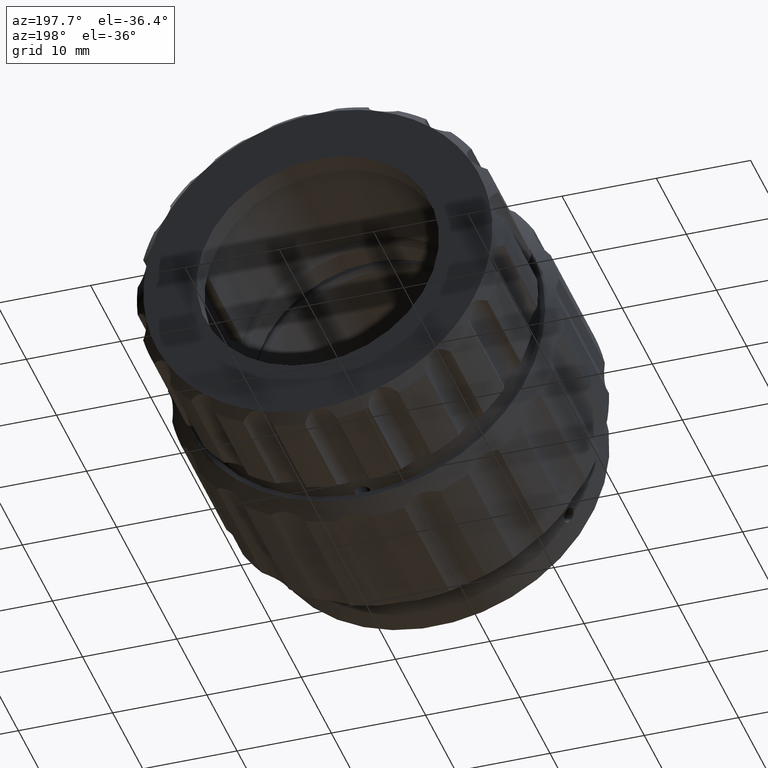
[diagram: clean part render]
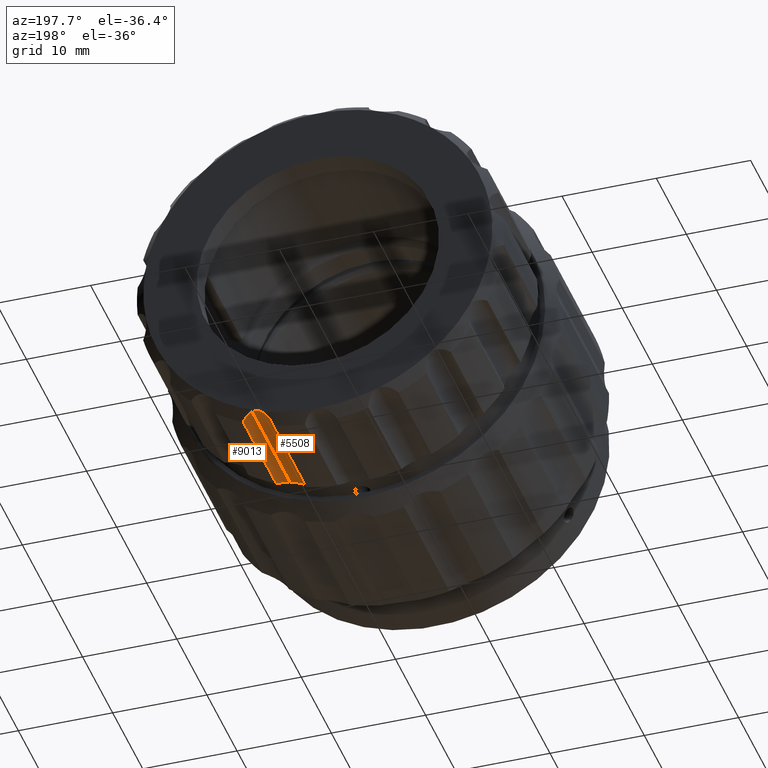
[diagram: same view with one multi-face feature highlighted, each face labeled with its STEP entity id]
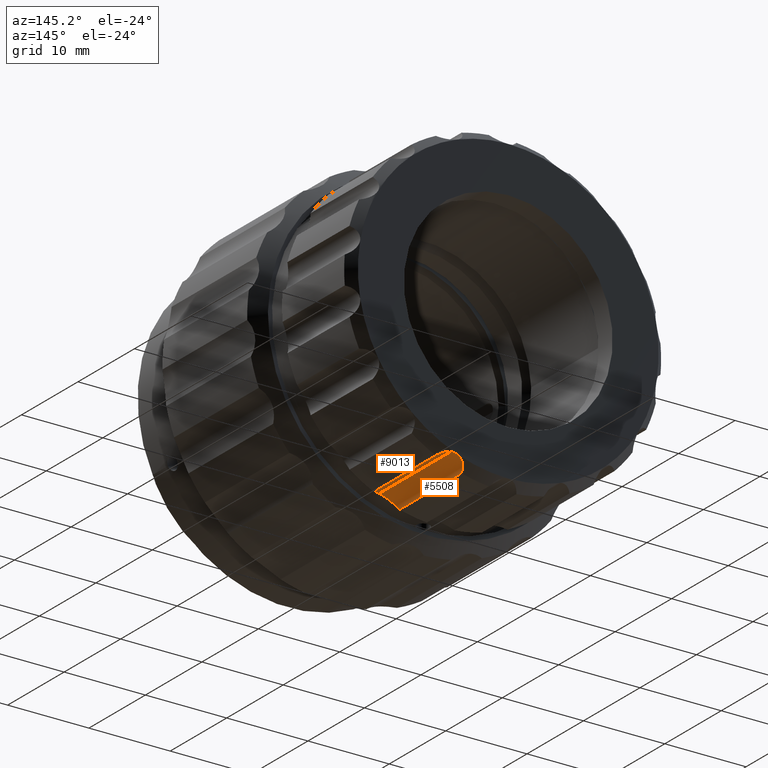
[diagram: same view with one multi-face feature highlighted, each face labeled with its STEP entity id]
A machine part, auxiliary view. The highlighted faces form ONE feature: a constant-radius fillet chain: 2 tangent blend faces with common blend radius 2 mm. The faces share edges in the B-rep.
A second angle (auxiliary view) of the same feature is appended — it is thin or edge-on in the first view.
Their STEP definitions:
[1] entity #9013 (Cylinder):
#55 = VERTEX_POINT ( 'NONE', #1149 ) ;
#70 = DIRECTION ( 'NONE',  ( -0.000000000000000000, 1.000000000000000000, -0.000000000000000000 ) ) ;
#527 = EDGE_CURVE ( 'NONE', #8628, #8778, #8072, .T. ) ;
#788 = CARTESIAN_POINT ( 'NONE',  ( 12.98311395248879307, -6.548755687005441750, 25.63960771921985682 ) ) ;
#836 = FACE_OUTER_BOUND ( 'NONE', #8691, .T. ) ;
#1066 = CARTESIAN_POINT ( 'NONE',  ( 14.20197974535352081, 7.451244312994560026, 27.22528302614250606 ) ) ;
#1149 = CARTESIAN_POINT ( 'NONE',  ( 12.98311395248885880, -4.302516684558157500, 27.63960771921991366 ) ) ;
#1301 = ORIENTED_EDGE ( 'NONE', *, *, #2106, .T. ) ;
#1375 = VECTOR ( 'NONE', #70, 1000.000000000000000 ) ;
#1399 = CARTESIAN_POINT ( 'NONE',  ( 14.20197974535352081, 7.451244312994560026, 27.22528302614250606 ) ) ;
#1407 = CARTESIAN_POINT ( 'NONE',  ( 13.22646887456539488, 8.214797936063586548, 27.62811870873805020 ) ) ;
#2106 = EDGE_CURVE ( 'NONE', #55, #8778, #5415, .T. ) ;
#2134 = EDGE_CURVE ( 'NONE', #55, #3420, #9218, .T. ) ;
#2647 = CARTESIAN_POINT ( 'NONE',  ( 13.10396432337362960, -4.262973755687936794, 27.63960771921986037 ) ) ;
#2885 = EDGE_CURVE ( 'NONE', #3420, #8628, #6687, .T. ) ;
#3106 = CYLINDRICAL_SURFACE ( 'NONE', #6450, 2.000000000000001776 ) ;
#3361 = CARTESIAN_POINT ( 'NONE',  ( 13.86234683605043116, -3.849485032689876185, 27.44923174645667530 ) ) ;
#3390 = CARTESIAN_POINT ( 'NONE',  ( 13.56358379582345641, 8.016083941377402766, 27.55655809339551610 ) ) ;
#3420 = VERTEX_POINT ( 'NONE', #4856 ) ;
#4145 = CARTESIAN_POINT ( 'NONE',  ( 14.04474959141558799, 7.627171938195074219, 27.34614160002906402 ) ) ;
#4216 = CARTESIAN_POINT ( 'NONE',  ( 13.44601716800936408, -4.106317091073965031, 27.58862551878364044 ) ) ;
#4264 = CARTESIAN_POINT ( 'NONE',  ( 13.55357987458721603, -4.045865376989598694, 27.55963793450206722 ) ) ;
#4270 = CARTESIAN_POINT ( 'NONE',  ( 12.98311395248879307, 8.318069460180153030, 27.63960771921985682 ) ) ;
#4586 = ORIENTED_EDGE ( 'NONE', *, *, #2885, .F. ) ;
#4667 = CARTESIAN_POINT ( 'NONE',  ( 12.98311395248879307, -6.548755687005441750, 27.63960771921985682 ) ) ;
#4764 = ORIENTED_EDGE ( 'NONE', *, *, #527, .F. ) ;
#4856 = CARTESIAN_POINT ( 'NONE',  ( 14.20197974535352259, -3.548755687005437753, 27.22528302614250606 ) ) ;
#5404 = VECTOR ( 'NONE', #9877, 1000.000000000000000 ) ;
#5415 = LINE ( 'NONE', #4667, #1375 ) ;
#6450 = AXIS2_PLACEMENT_3D ( 'NONE', #788, #9316, #7821 ) ;
#6482 = CARTESIAN_POINT ( 'NONE',  ( 14.20197974535352259, -3.548755687005437753, 27.22528302614250606 ) ) ;
#6687 = LINE ( 'NONE', #9824, #5404 ) ;
#6774 = CARTESIAN_POINT ( 'NONE',  ( 12.98311395248879307, 8.318069460180153030, 27.63960771921985682 ) ) ;
#7234 = CARTESIAN_POINT ( 'NONE',  ( 13.86790796176060780, 7.791991343959531413, 27.44618333774493379 ) ) ;
#7359 = CARTESIAN_POINT ( 'NONE',  ( 14.04212279397295404, -3.704292031124917006, 27.34816074829582533 ) ) ;
#7821 = DIRECTION ( 'NONE',  ( 0.000000000000000000, 0.000000000000000000, 1.000000000000000000 ) ) ;
#7930 = CARTESIAN_POINT ( 'NONE',  ( 12.98311395248885880, -4.302516684558157500, 27.63960771921991366 ) ) ;
#8072 = B_SPLINE_CURVE_WITH_KNOTS ( 'NONE', 3,
 ( #1066, #4145, #7234, #3390, #8831, #1407, #8212, #6774 ),
 .UNSPECIFIED., .F., .F.,
 ( 4, 2, 2, 4 ),
 ( 2.969550403672835319E-07, 0.0007839554264299858572, 0.001175784662124799247, 0.001567613897819612745 ),
 .UNSPECIFIED. ) ;
#8080 = CARTESIAN_POINT ( 'NONE',  ( 13.22195283064430349, -4.214577928670279583, 27.62855361095175510 ) ) ;
#8212 = CARTESIAN_POINT ( 'NONE',  ( 13.10782951623123260, 8.271140671923584264, 27.63960771921986748 ) ) ;
#8420 = ORIENTED_EDGE ( 'NONE', *, *, #2134, .F. ) ;
#8628 = VERTEX_POINT ( 'NONE', #1399 ) ;
#8691 = EDGE_LOOP ( 'NONE', ( #8420, #1301, #4764, #4586 ) ) ;
#8778 = VERTEX_POINT ( 'NONE', #4270 ) ;
#8831 = CARTESIAN_POINT ( 'NONE',  ( 13.45424173784532762, 8.087481504195212167, 27.58676877660534998 ) ) ;
#9013 = ADVANCED_FACE ( 'NONE', ( #836 ), #3106, .F. ) ;
#9218 = B_SPLINE_CURVE_WITH_KNOTS ( 'NONE', 3,
 ( #7930, #2647, #8080, #4216, #4264, #3361, #7359, #6482 ),
 .UNSPECIFIED., .F., .F.,
 ( 4, 2, 2, 4 ),
 ( 0.002920460057102231954, 0.003297645085213982228, 0.003674830113325732069, 0.004429200169549230015 ),
 .UNSPECIFIED. ) ;
#9316 = DIRECTION ( 'NONE',  ( -0.000000000000000000, 1.000000000000000000, -0.000000000000000000 ) ) ;
#9824 = CARTESIAN_POINT ( 'NONE',  ( 14.20197974535352259, 0.9512443129945594711, 27.22528302614250606 ) ) ;
#9877 = DIRECTION ( 'NONE',  ( -0.000000000000000000, 1.000000000000000000, -0.000000000000000000 ) ) ;
[2] entity #5508 (Cylinder):
#55 = VERTEX_POINT ( 'NONE', #1149 ) ;
#70 = DIRECTION ( 'NONE',  ( -0.000000000000000000, 1.000000000000000000, -0.000000000000000000 ) ) ;
#145 = CARTESIAN_POINT ( 'NONE',  ( 11.14166534276341558, -3.839614523176190897, 26.44766062202117496 ) ) ;
#350 = CARTESIAN_POINT ( 'NONE',  ( 12.98311395248879307, 8.318069460180153030, 27.63960771921985682 ) ) ;
#490 = CARTESIAN_POINT ( 'NONE',  ( 12.12006612059902189, 8.451244312994559138, 27.45383954261582460 ) ) ;
#567 = CARTESIAN_POINT ( 'NONE',  ( 11.03015614468119310, 0.9512443129945594711, 26.07083364715477458 ) ) ;
#958 = B_SPLINE_CURVE_WITH_KNOTS ( 'NONE', 3,
 ( #7082, #8625, #145, #9445, #2472, #8678, #5027, #1955, #6608, #2572, #6555, #7434, #5740, #8154, #8103, #4876 ),
 .UNSPECIFIED., .F., .F.,
 ( 4, 2, 2, 2, 2, 2, 2, 4 ),
 ( 3.235133249079060327E-07, 0.0007303576492692355438, 0.001095374717241401558, 0.001460391785213567897, 0.001825408853185734020, 0.002190425921157899709, 0.002555442989130065831, 0.002920460057102231954 ),
 .UNSPECIFIED. ) ;
#1110 = CARTESIAN_POINT ( 'NONE',  ( 12.29907366583747930, 8.451244312994560914, 27.51899296079168167 ) ) ;
#1149 = CARTESIAN_POINT ( 'NONE',  ( 12.98311395248885880, -4.302516684558157500, 27.63960771921991366 ) ) ;
#1241 = ORIENTED_EDGE ( 'NONE', *, *, #2106, .F. ) ;
#1254 = CARTESIAN_POINT ( 'NONE',  ( 12.75686823722165997, 8.393599258931216056, 27.63018403390904254 ) ) ;
#1375 = VECTOR ( 'NONE', #70, 1000.000000000000000 ) ;
#1442 = EDGE_CURVE ( 'NONE', #9533, #55, #958, .T. ) ;
#1734 = ORIENTED_EDGE ( 'NONE', *, *, #7136, .F. ) ;
#1761 = AXIS2_PLACEMENT_3D ( 'NONE', #7492, #6466, #5851 ) ;
#1854 = CARTESIAN_POINT ( 'NONE',  ( 12.52720586203615127, 8.439164951002007697, 27.59043549258635863 ) ) ;
#1955 = CARTESIAN_POINT ( 'NONE',  ( 11.74835598231073064, -4.326817530003400414, 27.21726033824833024 ) ) ;
#2065 = CYLINDRICAL_SURFACE ( 'NONE', #1761, 2.000000000000001776 ) ;
#2106 = EDGE_CURVE ( 'NONE', #55, #8778, #5415, .T. ) ;
#2472 = CARTESIAN_POINT ( 'NONE',  ( 11.35807798188705320, -4.090296821096658597, 26.81063119585913768 ) ) ;
#2572 = CARTESIAN_POINT ( 'NONE',  ( 12.04932306549631704, -4.404027974854527017, 27.41231629321998042 ) ) ;
#2648 = B_SPLINE_CURVE_WITH_KNOTS ( 'NONE', 3,
 ( #6602, #490, #3580, #6661, #5891, #8304, #10001, #7586, #8354, #6917, #8456, #10050 ),
 .UNSPECIFIED., .F., .F.,
 ( 4, 2, 2, 2, 2, 4 ),
 ( 0.002272448979374291130, 0.002839709063133294756, 0.003123339105012792449, 0.003406969146892290575, 0.003974229230651282058, 0.004541489314410273974 ),
 .UNSPECIFIED. ) ;
#3253 = VERTEX_POINT ( 'NONE', #7267 ) ;
#3580 = CARTESIAN_POINT ( 'NONE',  ( 11.94925942418700693, 8.419677107883400069, 27.36141170200773942 ) ) ;
#3634 = CARTESIAN_POINT ( 'NONE',  ( 11.03015614468119310, -3.548755687005437753, 26.07083364715477458 ) ) ;
#3655 = DIRECTION ( 'NONE',  ( 0.000000000000000000, -1.000000000000000000, 0.000000000000000000 ) ) ;
#3767 = ORIENTED_EDGE ( 'NONE', *, *, #8576, .F. ) ;
#3819 = EDGE_CURVE ( 'NONE', #7281, #9533, #6580, .T. ) ;
#4270 = CARTESIAN_POINT ( 'NONE',  ( 12.98311395248879307, 8.318069460180153030, 27.63960771921985682 ) ) ;
#4667 = CARTESIAN_POINT ( 'NONE',  ( 12.98311395248879307, -6.548755687005441750, 27.63960771921985682 ) ) ;
#4825 = CARTESIAN_POINT ( 'NONE',  ( 11.03015614468119310, 7.451244312994560026, 26.07083364715477458 ) ) ;
#4876 = CARTESIAN_POINT ( 'NONE',  ( 12.98311395248885880, -4.302516684558157500, 27.63960771921991366 ) ) ;
#5027 = CARTESIAN_POINT ( 'NONE',  ( 11.57327158558088698, -4.245482584203103649, 27.06296977144590699 ) ) ;
#5415 = LINE ( 'NONE', #4667, #1375 ) ;
#5508 = ADVANCED_FACE ( 'NONE', ( #6617 ), #2065, .F. ) ;
#5740 = CARTESIAN_POINT ( 'NONE',  ( 12.50806923097353618, -4.410276219517823115, 27.58618786017384394 ) ) ;
#5763 = B_SPLINE_CURVE_WITH_KNOTS ( 'NONE', 3,
 ( #350, #8209, #1254, #1854, #8054, #1110 ),
 .UNSPECIFIED., .F., .F.,
 ( 4, 2, 4 ),
 ( 0.001567613897819612745, 0.001920031438596951938, 0.002272448979374291130 ),
 .UNSPECIFIED. ) ;
#5851 = DIRECTION ( 'NONE',  ( 0.000000000000000000, 0.000000000000000000, 1.000000000000000000 ) ) ;
#5891 = CARTESIAN_POINT ( 'NONE',  ( 11.65846890608945863, 8.300585463232257766, 27.14059600752240442 ) ) ;
#6093 = ORIENTED_EDGE ( 'NONE', *, *, #3819, .F. ) ;
#6101 = ORIENTED_EDGE ( 'NONE', *, *, #1442, .F. ) ;
#6466 = DIRECTION ( 'NONE',  ( -0.000000000000000000, 1.000000000000000000, -0.000000000000000000 ) ) ;
#6555 = CARTESIAN_POINT ( 'NONE',  ( 12.16127792303384325, -4.416684589950738093, 27.46703223538220939 ) ) ;
#6580 = LINE ( 'NONE', #567, #9949 ) ;
#6602 = CARTESIAN_POINT ( 'NONE',  ( 12.29907366583747930, 8.451244312994560914, 27.51899296079168167 ) ) ;
#6608 = CARTESIAN_POINT ( 'NONE',  ( 11.84364256412585981, -4.359040822922144010, 27.28765688840929471 ) ) ;
#6617 = FACE_OUTER_BOUND ( 'NONE', #9297, .T. ) ;
#6661 = CARTESIAN_POINT ( 'NONE',  ( 11.72785572035912161, 8.335203144660212615, 27.19931692477054952 ) ) ;
#6917 = CARTESIAN_POINT ( 'NONE',  ( 11.10739254875899640, 7.700511805140813237, 26.34999926722486308 ) ) ;
#7082 = CARTESIAN_POINT ( 'NONE',  ( 11.03015614468119310, -3.548755687005437753, 26.07083364715477458 ) ) ;
#7136 = EDGE_CURVE ( 'NONE', #8778, #3253, #5763, .T. ) ;
#7267 = CARTESIAN_POINT ( 'NONE',  ( 12.29907366583747930, 8.451244312994560914, 27.51899296079168167 ) ) ;
#7281 = VERTEX_POINT ( 'NONE', #4825 ) ;
#7434 = CARTESIAN_POINT ( 'NONE',  ( 12.38957518568116711, -4.419650705132298185, 27.55340147871380196 ) ) ;
#7492 = CARTESIAN_POINT ( 'NONE',  ( 12.98311395248879307, -6.548755687005441750, 25.63960771921985682 ) ) ;
#7586 = CARTESIAN_POINT ( 'NONE',  ( 11.31960952091343309, 8.038822680653716191, 26.76223919408759855 ) ) ;
#8054 = CARTESIAN_POINT ( 'NONE',  ( 12.41028437972287435, 8.451244312994557362, 27.55947035037746318 ) ) ;
#8103 = CARTESIAN_POINT ( 'NONE',  ( 12.86616220531971599, -4.340783961569298022, 27.63960771921986748 ) ) ;
#8154 = CARTESIAN_POINT ( 'NONE',  ( 12.74785012047176025, -4.370499671753018234, 27.62945511586630332 ) ) ;
#8209 = CARTESIAN_POINT ( 'NONE',  ( 12.87094276089093725, 8.360277970016648297, 27.63960771921986748 ) ) ;
#8304 = CARTESIAN_POINT ( 'NONE',  ( 11.53249106248515510, 8.222746696284479739, 27.01922490219822492 ) ) ;
#8354 = CARTESIAN_POINT ( 'NONE',  ( 11.23591810123066814, 7.929895698864684483, 26.62464253750469112 ) ) ;
#8456 = CARTESIAN_POINT ( 'NONE',  ( 11.06114365160394186, 7.578739630624235168, 26.21117143685838258 ) ) ;
#8576 = EDGE_CURVE ( 'NONE', #3253, #7281, #2648, .T. ) ;
#8625 = CARTESIAN_POINT ( 'NONE',  ( 11.07220330735734315, -3.699189842802951489, 26.26125896559002371 ) ) ;
#8678 = CARTESIAN_POINT ( 'NONE',  ( 11.49592568240143997, -4.197628757726485027, 26.98136363513917146 ) ) ;
#8778 = VERTEX_POINT ( 'NONE', #4270 ) ;
#9297 = EDGE_LOOP ( 'NONE', ( #1241, #6101, #6093, #3767, #1734 ) ) ;
#9445 = CARTESIAN_POINT ( 'NONE',  ( 11.29721567355272960, -4.030208961520667543, 26.72068015531131380 ) ) ;
#9533 = VERTEX_POINT ( 'NONE', #3634 ) ;
#9949 = VECTOR ( 'NONE', #3655, 1000.000000000000000 ) ;
#10001 = CARTESIAN_POINT ( 'NONE',  ( 11.47546959167345371, 8.179487275552761005, 26.95638241022069792 ) ) ;
#10050 = CARTESIAN_POINT ( 'NONE',  ( 11.03015614468119310, 7.451244312994560026, 26.07083364715477458 ) ) ;